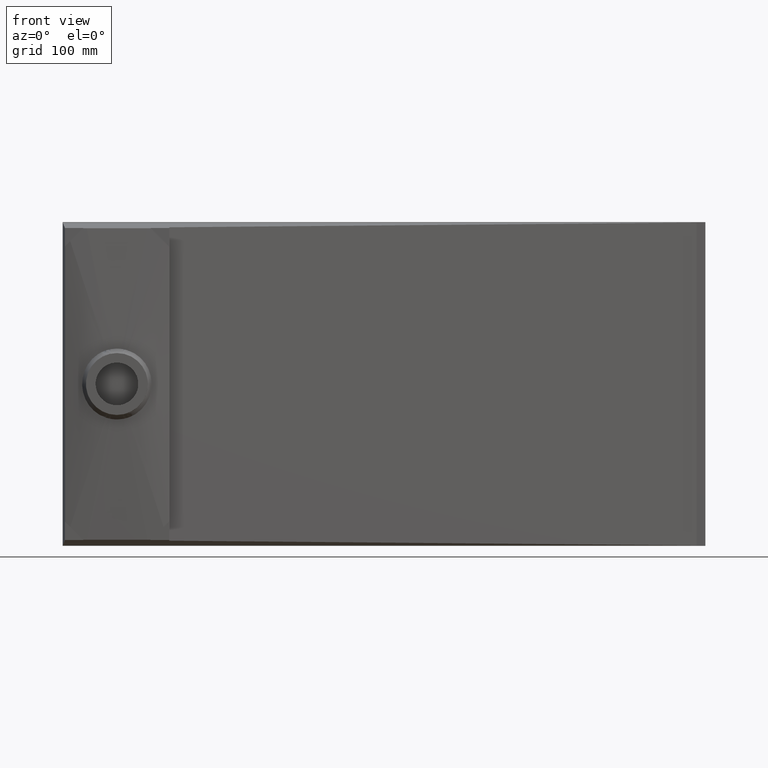
[diagram: clean part render]
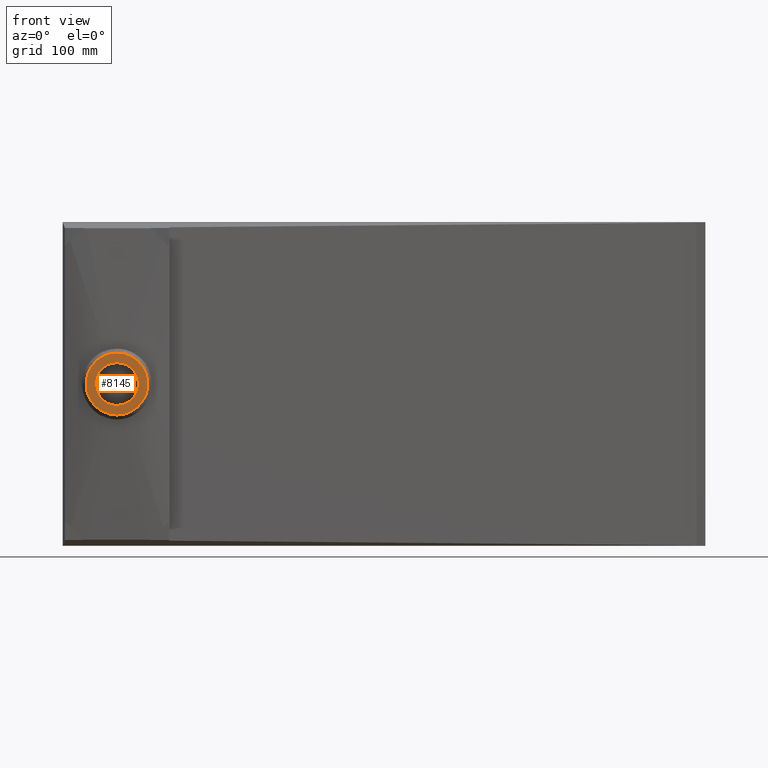
[diagram: same view with one face highlighted and labeled with its STEP entity id]
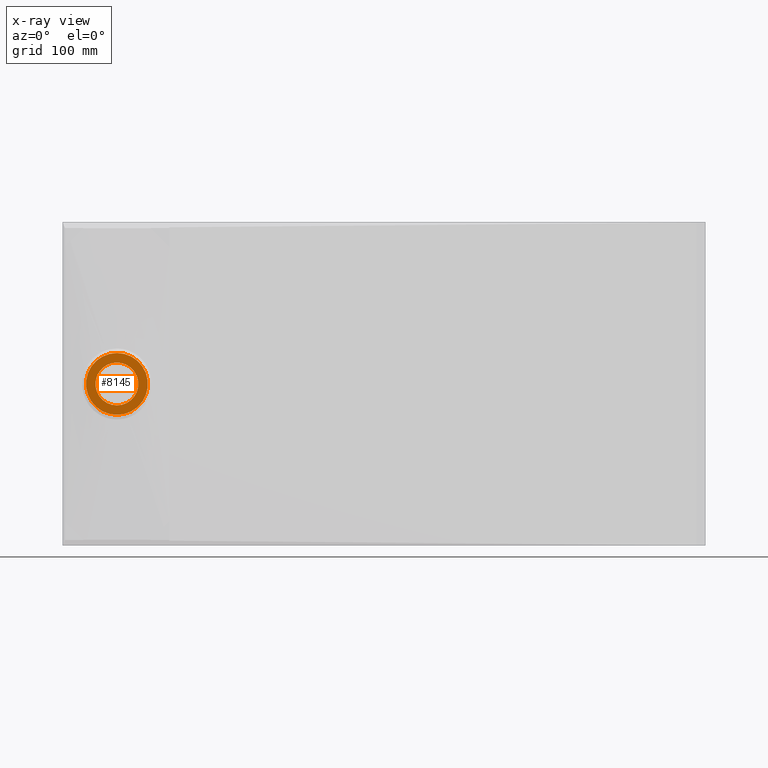
[diagram: x-ray of the same camera — body ghosted, the highlighted face saturated]
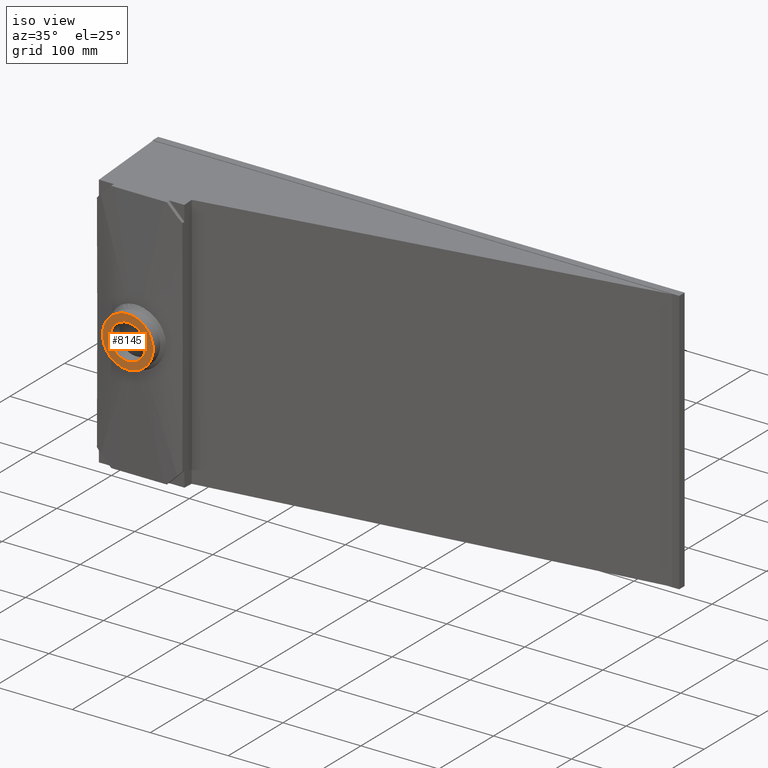
[diagram: same view with one face highlighted and labeled with its STEP entity id]
A machine part, front view. The second image highlights one B-rep face of the part: STEP entity #8145.
The next image is the same camera in x-ray: the body ghosted, the highlighted face saturated — about 0% of this face is hidden behind the body in this view.
A second angle (iso view) of the same face is appended — the face is thin or edge-on in the first view.
In plain terms, the highlighted planar face has unit normal (0, -1, 0).
Its self-contained STEP definition (entity closure, byte-faithful):
#4 = CIRCLE ( 'NONE', #4678, 32.50000000000000000 ) ;
#223 = CARTESIAN_POINT ( 'NONE',  ( 47.00000000000002100, -137.0000000000000000, -192.5000000000000000 ) ) ;
#277 = DIRECTION ( 'NONE',  ( 0.0000000000000000000, 0.0000000000000000000, -1.000000000000000000 ) ) ;
#336 = DIRECTION ( 'NONE',  ( 0.0000000000000000000, -1.000000000000000000, 0.0000000000000000000 ) ) ;
#347 = CARTESIAN_POINT ( 'NONE',  ( 47.00000000000001400, -137.0000000000000000, -160.0000000000000000 ) ) ;
#616 = EDGE_CURVE ( 'NONE', #4474, #1609, #1854, .T. ) ;
#644 = ORIENTED_EDGE ( 'NONE', *, *, #616, .F. ) ;
#1161 = ORIENTED_EDGE ( 'NONE', *, *, #7737, .F. ) ;
#1609 = VERTEX_POINT ( 'NONE', #2561 ) ;
#1854 = CIRCLE ( 'NONE', #7687, 22.49999999999999300 ) ;
#1981 = FACE_OUTER_BOUND ( 'NONE', #4884, .T. ) ;
#2262 = EDGE_CURVE ( 'NONE', #5402, #3927, #3724, .T. ) ;
#2511 = CARTESIAN_POINT ( 'NONE',  ( 47.00000000000001400, -137.0000000000000000, -160.0000000000000000 ) ) ;
#2561 = CARTESIAN_POINT ( 'NONE',  ( 47.00000000000001400, -137.0000000000000000, -182.5000000000000000 ) ) ;
#2576 = DIRECTION ( 'NONE',  ( 0.0000000000000000000, -1.000000000000000000, 0.0000000000000000000 ) ) ;
#2598 = EDGE_LOOP ( 'NONE', ( #644, #1161 ) ) ;
#3002 = DIRECTION ( 'NONE',  ( 0.0000000000000000000, -1.000000000000000000, 0.0000000000000000000 ) ) ;
#3092 = DIRECTION ( 'NONE',  ( 0.0000000000000000000, 0.0000000000000000000, -1.000000000000000000 ) ) ;
#3617 = ORIENTED_EDGE ( 'NONE', *, *, #2262, .T. ) ;
#3724 = CIRCLE ( 'NONE', #7059, 32.50000000000000000 ) ;
#3927 = VERTEX_POINT ( 'NONE', #7836 ) ;
#4357 = DIRECTION ( 'NONE',  ( 0.0000000000000000000, 0.0000000000000000000, -1.000000000000000000 ) ) ;
#4380 = DIRECTION ( 'NONE',  ( 0.0000000000000000000, -1.000000000000000000, 0.0000000000000000000 ) ) ;
#4435 = CARTESIAN_POINT ( 'NONE',  ( 47.00000000000001400, -137.0000000000000000, -160.0000000000000000 ) ) ;
#4474 = VERTEX_POINT ( 'NONE', #7047 ) ;
#4528 = CIRCLE ( 'NONE', #7178, 22.49999999999999300 ) ;
#4565 = DIRECTION ( 'NONE',  ( 0.0000000000000000000, 0.0000000000000000000, -1.000000000000000000 ) ) ;
#4678 = AXIS2_PLACEMENT_3D ( 'NONE', #347, #336, #277 ) ;
#4884 = EDGE_LOOP ( 'NONE', ( #8081, #3617 ) ) ;
#5059 = CARTESIAN_POINT ( 'NONE',  ( 47.00000000000001400, -137.0000000000000000, -160.0000000000000000 ) ) ;
#5119 = DIRECTION ( 'NONE',  ( 0.0000000000000000000, -1.000000000000000000, 0.0000000000000000000 ) ) ;
#5146 = CARTESIAN_POINT ( 'NONE',  ( 47.00000000000001400, -137.0000000000000000, -160.0000000000000000 ) ) ;
#5402 = VERTEX_POINT ( 'NONE', #223 ) ;
#7047 = CARTESIAN_POINT ( 'NONE',  ( 47.00000000000001400, -137.0000000000000000, -137.5000000000000000 ) ) ;
#7059 = AXIS2_PLACEMENT_3D ( 'NONE', #5146, #5119, #4565 ) ;
#7178 = AXIS2_PLACEMENT_3D ( 'NONE', #2511, #3002, #3092 ) ;
#7251 = PLANE ( 'NONE',  #7834 ) ;
#7268 = FACE_BOUND ( 'NONE', #2598, .T. ) ;
#7687 = AXIS2_PLACEMENT_3D ( 'NONE', #4435, #4380, #4357 ) ;
#7737 = EDGE_CURVE ( 'NONE', #1609, #4474, #4528, .T. ) ;
#7834 = AXIS2_PLACEMENT_3D ( 'NONE', #5059, #2576, #8122 ) ;
#7836 = CARTESIAN_POINT ( 'NONE',  ( 47.00000000000001400, -137.0000000000000000, -127.5000000000000000 ) ) ;
#7937 = EDGE_CURVE ( 'NONE', #3927, #5402, #4, .T. ) ;
#8081 = ORIENTED_EDGE ( 'NONE', *, *, #7937, .T. ) ;
#8122 = DIRECTION ( 'NONE',  ( 0.0000000000000000000, -0.0000000000000000000, -1.000000000000000000 ) ) ;
#8145 = ADVANCED_FACE ( 'NONE', ( #7268, #1981 ), #7251, .T. ) ;